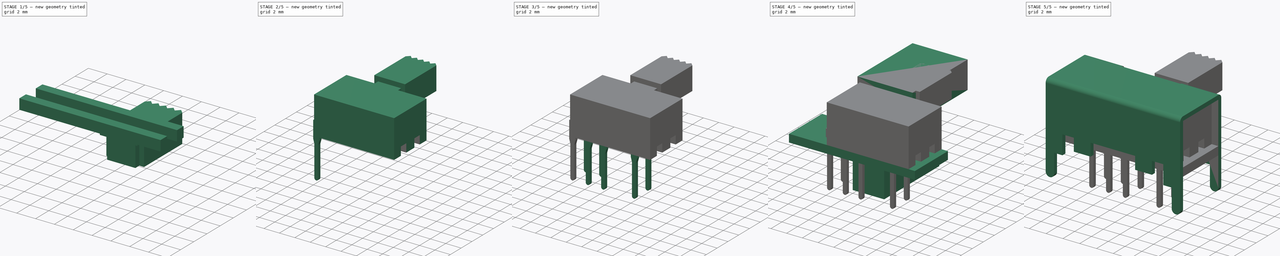
[diagram: build sequence overview — one tinted view per stage of 5, left to right]
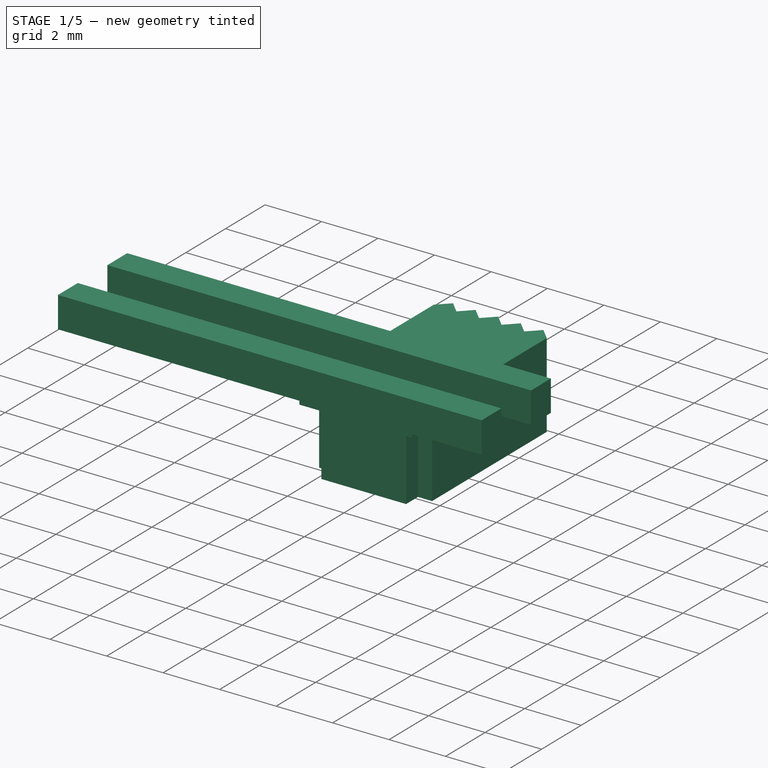
[diagram: stage 1 of 5 — iso view after this stage's code; geometry added in this stage tinted green]
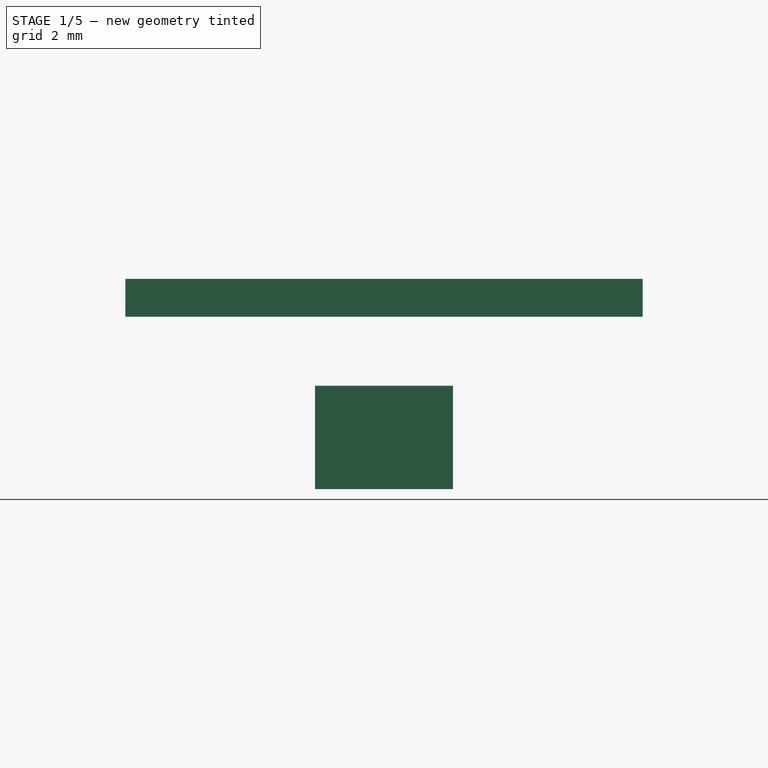
[diagram: stage 1 of 5 — front view after this stage's code; geometry added in this stage tinted green]
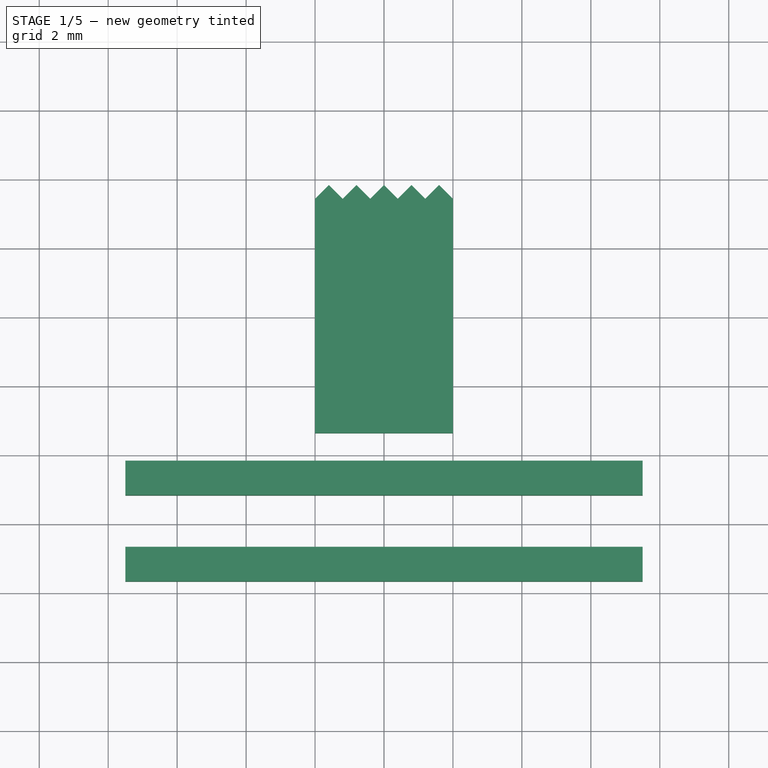
[diagram: stage 1 of 5 — top view after this stage's code; geometry added in this stage tinted green]
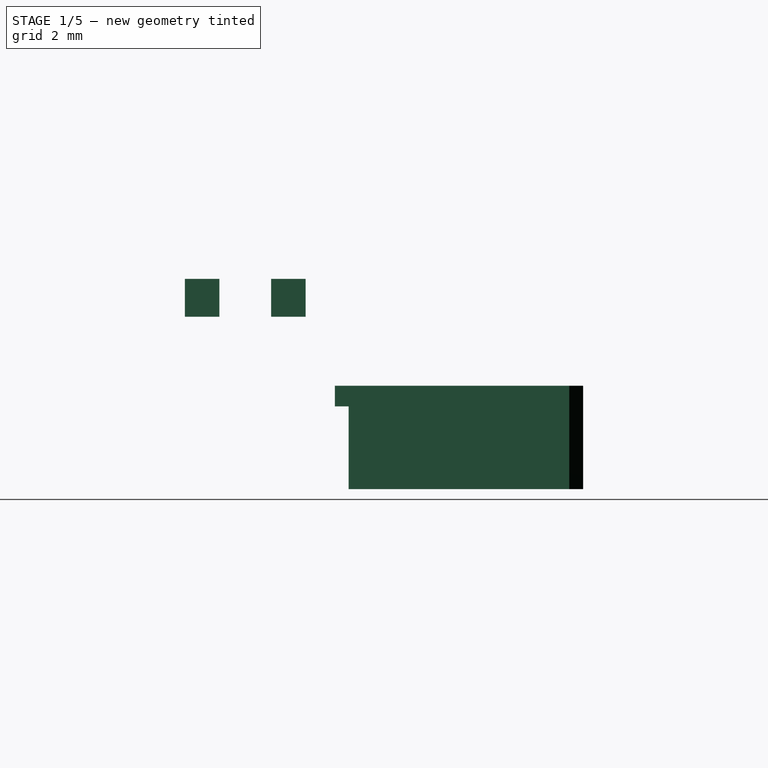
[diagram: stage 1 of 5 — right view after this stage's code; geometry added in this stage tinted green]
FCSTD DOCUMENT  (FreeCAD 0.19R24291 (Git))
Label: SK-23D05-G6-Inv
License: All rights reserved
LicenseURL: http://en.wikipedia.org/wiki/All_rights_reserved
objects: Sketcher::SketchObject×10, Part::Extrusion×10, Part::Box×8, Part::Cut×4, Part::MultiFuse×3, Part::Fillet×1
note: 36 computed .brp shape members not serialized (recipe doc carries the construction recipe); baked Part::Feature solids carry a one-line shape summary decoded from their .brp

FEATURE [Sketcher::SketchObject] Sketch001
  FullyConstrained = true
  sketch-geometry (17):
    g0: LineSegment StartX=-2 StartY=9.4 StartZ=0 EndX=-2 EndY=3.6 EndZ=0
    g1: LineSegment StartX=2 StartY=9.4 StartZ=0 EndX=2 EndY=3.6 EndZ=0
    g2: LineSegment StartX=-2 StartY=9.4 StartZ=0 EndX=-1.6 EndY=9.8 EndZ=0
    g3: LineSegment StartX=-1.6 StartY=9.8 StartZ=0 EndX=-1.2 EndY=9.4 EndZ=0
    g4: LineSegment StartX=-1.2 StartY=9.4 StartZ=0 EndX=-0.8 EndY=9.8 EndZ=0
    g5: LineSegment StartX=-0.8 StartY=9.8 StartZ=0 EndX=-0.4 EndY=9.4 EndZ=0
    g6: LineSegment StartX=-0.4 StartY=9.4 StartZ=0 EndX=-1e-16 EndY=9.8 EndZ=0
    g7: LineSegment StartX=-1e-16 StartY=9.8 StartZ=0 EndX=0.4 EndY=9.4 EndZ=0
    g8: LineSegment StartX=0.4 StartY=9.4 StartZ=0 EndX=0.8 EndY=9.8 EndZ=0
    g9: LineSegment StartX=0.8 StartY=9.8 StartZ=0 EndX=1.2 EndY=9.4 EndZ=0
    g10: LineSegment StartX=1.2 StartY=9.4 StartZ=0 EndX=1.6 EndY=9.8 EndZ=0
    g11: LineSegment StartX=1.6 StartY=9.8 StartZ=0 EndX=2 EndY=9.4 EndZ=0
    g12: LineSegment StartX=-2 StartY=3.6 StartZ=0 EndX=-1.5 EndY=3.6 EndZ=0
    g13: LineSegment StartX=1.5 StartY=3.6 StartZ=0 EndX=2 EndY=3.6 EndZ=0
    g14: LineSegment StartX=-1.5 StartY=3.6 StartZ=0 EndX=-1.5 EndY=3 EndZ=0
    g15: LineSegment StartX=1.5 StartY=3.6 StartZ=0 EndX=1.5 EndY=3 EndZ=0
    g16: LineSegment StartX=-1.5 StartY=3 StartZ=0 EndX=1.5 EndY=3 EndZ=0
  constraints (51):
    c: Vertical(g0)
    c: Vertical(g1)
    c: Horizontal(g1,g0)
    c: DistanceX(g0,g-1) = 2
    c: DistanceX(g-1,g1) = 2
    c: Coincident(g3,g2)
    c: Coincident(g5,g4)
    c: Coincident(g6,g7)
    c: Coincident(g9,g8)
    c: Coincident(g10,g11)
    c: Coincident(g11,g1)
    c: Coincident(g7,g8)
    c: Coincident(g9,g10)
    c: Coincident(g6,g5)
    c: Coincident(g4,g3)
    c: Coincident(g0,g2)
    c: Horizontal(g2,g4)
    c: Horizontal(g4,g6)
    c: Horizontal(g6,g8)
    c: Horizontal(g8,g10)
    c: Horizontal(g0,g3)
    c: Horizontal(g3,g5)
    c: Horizontal(g5,g7)
    c: Horizontal(g7,g9)
    c: DistanceY(g0,g2) = 0.4
    c: DistanceX(g6,g-1) = 0
    c: DistanceX(g0,g2) = 0.4
    c: DistanceX(g2,g3) = 0.4
    c: DistanceX(g3,g4) = 0.4
    c: DistanceX(g4,g5) = 0.4
    c: DistanceX(g10,g1) = 0.4
    c: DistanceX(g9,g10) = 0.4
    c: DistanceX(g8,g9) = 0.4
    c: DistanceX(g7,g8) = 0.4
    c: Horizontal(g13)
    c: Horizontal(g12)
    c: Distance(g12) = 0.5
    c: Distance(g13) = 0.5
    c: Coincident(g13,g1)
    c: Coincident(g12,g0)
    c: Vertical(g14)
    c: Vertical(g15)
    c: Horizontal(g16)
    c: Coincident(g16,g15)
    c: Coincident(g14,g16)
    c: Distance(g14) = 0.6
    c: Coincident(g14,g12)
    c: Coincident(g15,g13)
    c: DistanceY(g-1,g15) = 3
    c: Equal(g15,g14)
    c: DistanceY(g0,g2) = 6.2
FEATURE [Part::Extrusion] Extrude001
  Base = -> Sketch001
  Dir = (0,0,1)
  DirMode = 2
  FaceMakerClass = Part::FaceMakerBullseye
  LengthFwd = 3
  LengthRev = 0
  Solid = true
  Symmetric = false
FEATURE [Part::Box] Box005  label="Cube004"
  AttacherType = Attacher::AttachEngine3D
  Height = 0.6
  Length = 4
  Placement = pos=(-2,2.6,2.4) rot=(0,0,1;0rad)
  Width = 1
FEATURE [Part::Box] Box006  label="Cube005"
  AttacherType = Attacher::AttachEngine3D
  Height = 1.1
  Length = 15
  Placement = pos=(-7.5,-1.75,5) rot=(0,0,1;0rad)
  Width = 1
FEATURE [Part::Box] Box007  label="Cube006"
  AttacherType = Attacher::AttachEngine3D
  Height = 1.1
  Length = 15
  Placement = pos=(-7.5,0.75,5) rot=(0,0,1;0rad)
  Width = 1
FEATURE [Part::MultiFuse] Fusion002
  Shapes = -> [Box006,Box007]
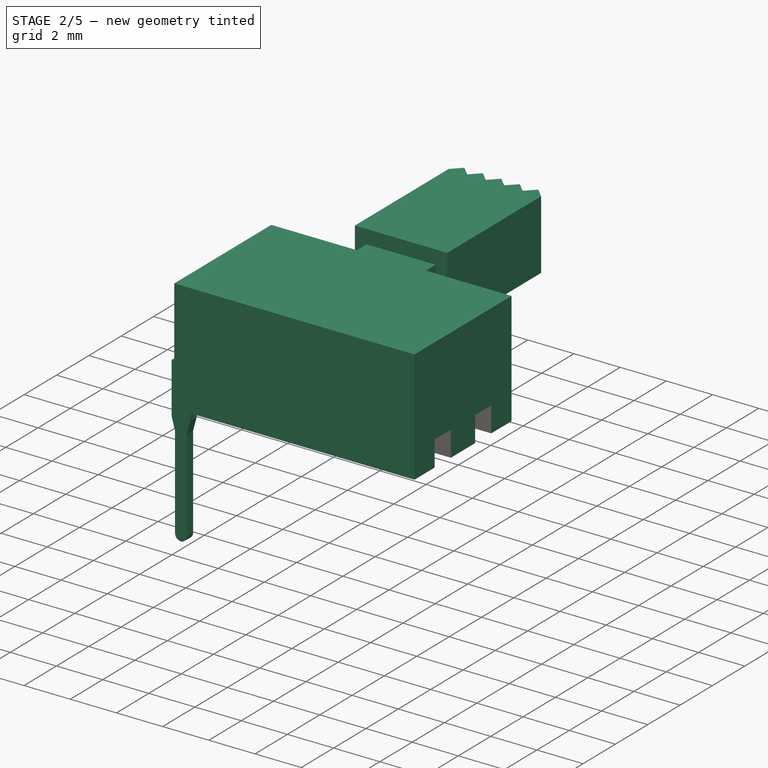
[diagram: stage 2 of 5 — iso view after this stage's code; geometry added in this stage tinted green]
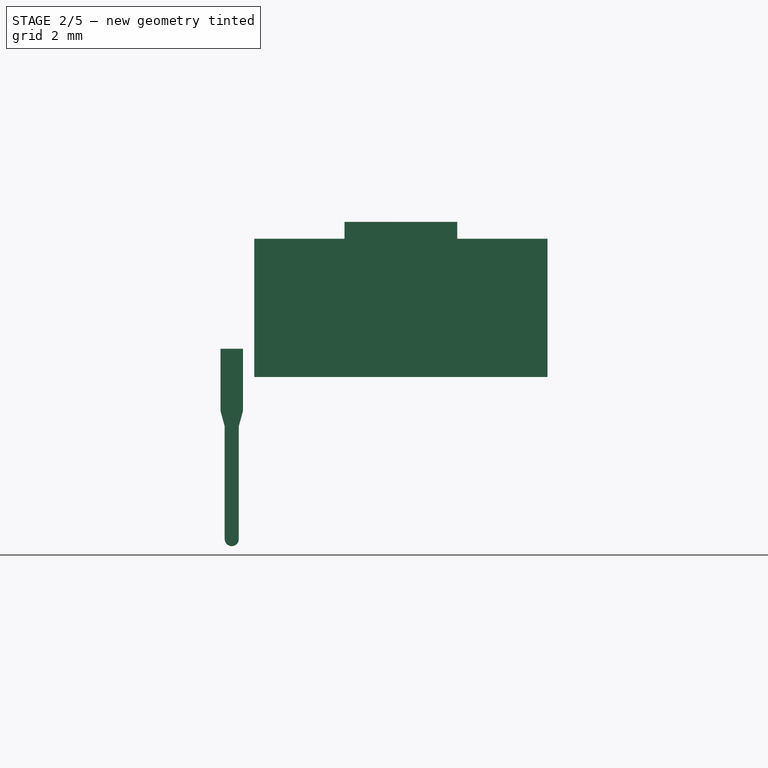
[diagram: stage 2 of 5 — front view after this stage's code; geometry added in this stage tinted green]
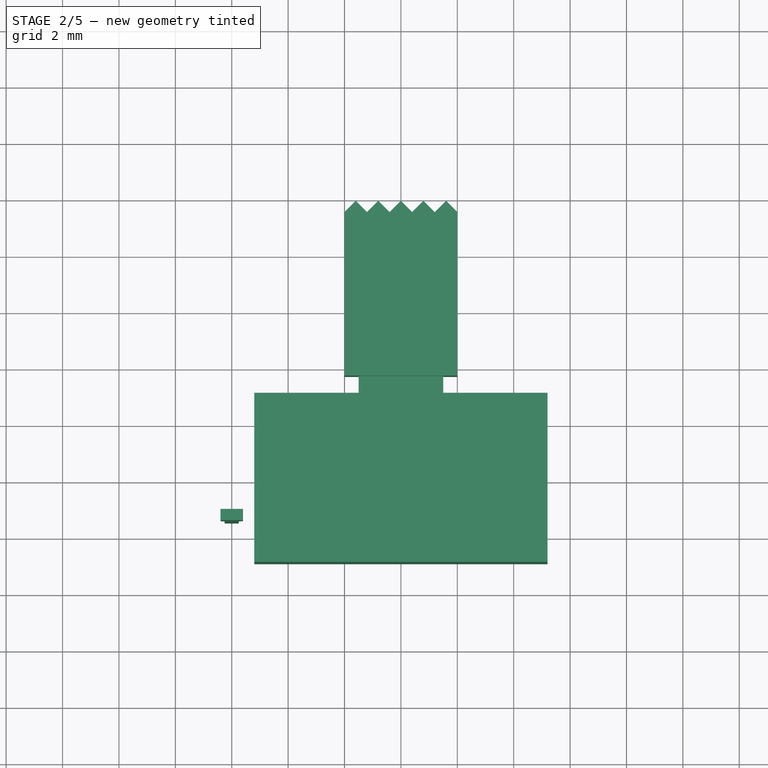
[diagram: stage 2 of 5 — top view after this stage's code; geometry added in this stage tinted green]
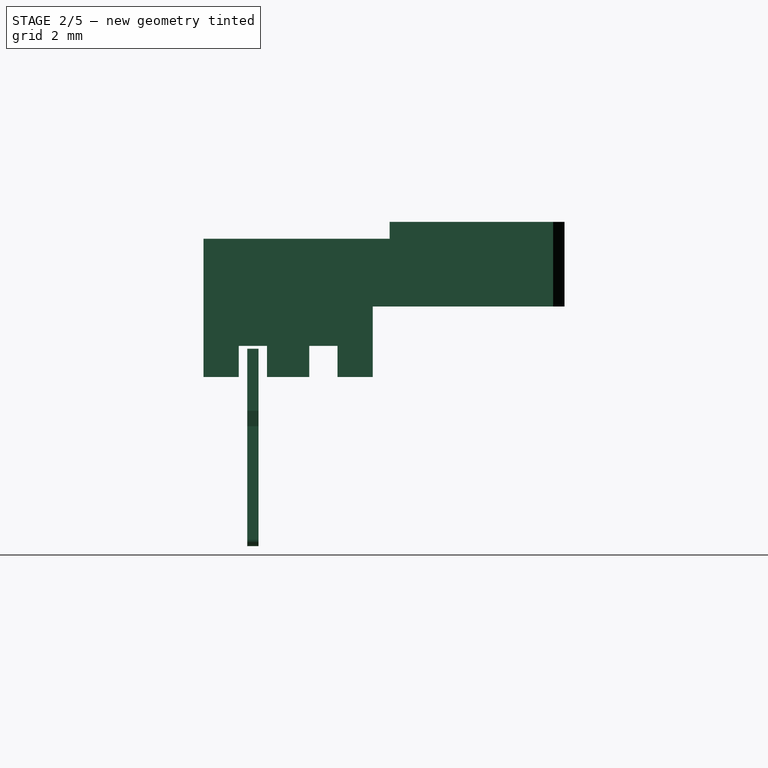
[diagram: stage 2 of 5 — right view after this stage's code; geometry added in this stage tinted green]
FEATURE [Part::Box] Box004  label="Cube003"
  AttacherType = Attacher::AttachEngine3D
  Height = 4.9
  Length = 10.4
  Placement = pos=(-5.2,-3,5) rot=(0,0,1;0rad)
  Width = 6
  expr: .Placement.Base.y = -(Width / 2)
  expr: .Placement.Base.x = -(Length / 2)
FEATURE [Part::Cut] Cut002
  Base = -> Extrude001
  Placement = pos=(0,0,7.5) rot=(0,0,1;0rad)
  Tool = -> Box005
FEATURE [Part::MultiFuse] Fusion001  label="PlasticLever"
  Placement = pos=(2,0,0) rot=(0,0,1;0rad)
  Shapes = -> [Box004,Cut002]
FEATURE [Sketcher::SketchObject] Sketch009
  FullyConstrained = true
  Placement = pos=(0,0,0) rot=(1,0,0;1.5708rad)
  sketch-geometry (8):
    g0: ArcOfCircle CenterX=0 CenterY=0.25 CenterZ=0 NormalX=0 NormalY=0 NormalZ=1 AngleXU=0 Radius=0.25 StartAngle=3.14159 EndAngle=6.28319
    g1: LineSegment StartX=-0.25 StartY=0.25 StartZ=0 EndX=-0.25 EndY=4.25 EndZ=0
    g2: LineSegment StartX=0.25 StartY=0.25 StartZ=0 EndX=0.25 EndY=4.25 EndZ=0
    g3: LineSegment StartX=0.4 StartY=4.8 StartZ=0 EndX=0.4 EndY=7 EndZ=0
    g4: LineSegment StartX=-0.4 StartY=4.8 StartZ=0 EndX=-0.4 EndY=7 EndZ=0
    g5: LineSegment StartX=0.4 StartY=4.8 StartZ=0 EndX=0.25 EndY=4.25 EndZ=0
    g6: LineSegment StartX=-0.4 StartY=4.8 StartZ=0 EndX=-0.25 EndY=4.25 EndZ=0
    g7: LineSegment StartX=-0.4 StartY=7 StartZ=0 EndX=0.4 EndY=7 EndZ=0
  constraints (25):
    c: Horizontal(g0,g0)
    c: Horizontal(g0,g0)
    c: Radius(g0) = 0.25
    c: DistanceY(g-1,g0) = 0.25
    c: DistanceX(g-1,g0) = 0
    c: Vertical(g1)
    c: Vertical(g2)
    c: Distance(g2) = 4
    c: Equal(g1,g2)
    c: Coincident(g1,g0)
    c: Coincident(g2,g0)
    c: Vertical(g3)
    c: Vertical(g4)
    c: Horizontal(g3,g4)
    c: DistanceY(g-1,g3) = 7
    c: DistanceX(g4,g3) = 0.8
    c: DistanceX(g4,g-1) = 0.4
    c: DistanceY(g-1,g4) = 4.8
    c: Equal(g4,g3)
    c: Coincident(g6,g1)
    c: Coincident(g6,g4)
    c: Coincident(g5,g3)
    c: Coincident(g5,g2)
    c: Coincident(g7,g3)
    c: Coincident(g7,g4)
FEATURE [Part::Extrusion] Extrude009  label="SteelPin008"
  Base = -> Sketch009
  Dir = (0,-1,2e-16)
  DirMode = 2
  FaceMakerClass = Part::FaceMakerBullseye
  LengthFwd = 0.4
  LengthRev = 0
  Placement = pos=(-4,-1.05,-1) rot=(0,0,1;0rad)
  Solid = true
  Symmetric = false
FEATURE [Part::Cut] Cut003  label="PlasticLever001"
  Base = -> Fusion001
  Tool = -> Fusion002
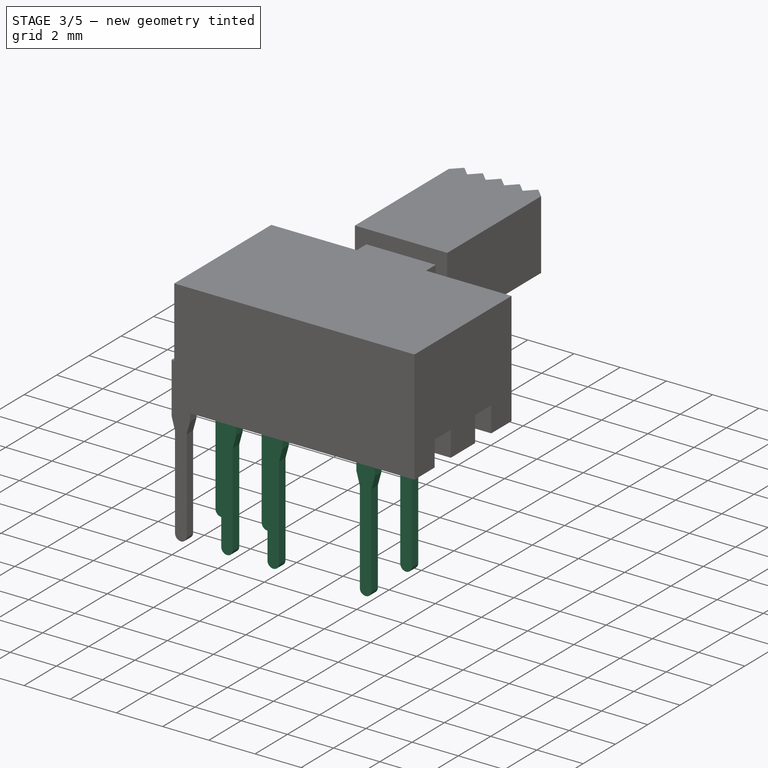
[diagram: stage 3 of 5 — iso view after this stage's code; geometry added in this stage tinted green]
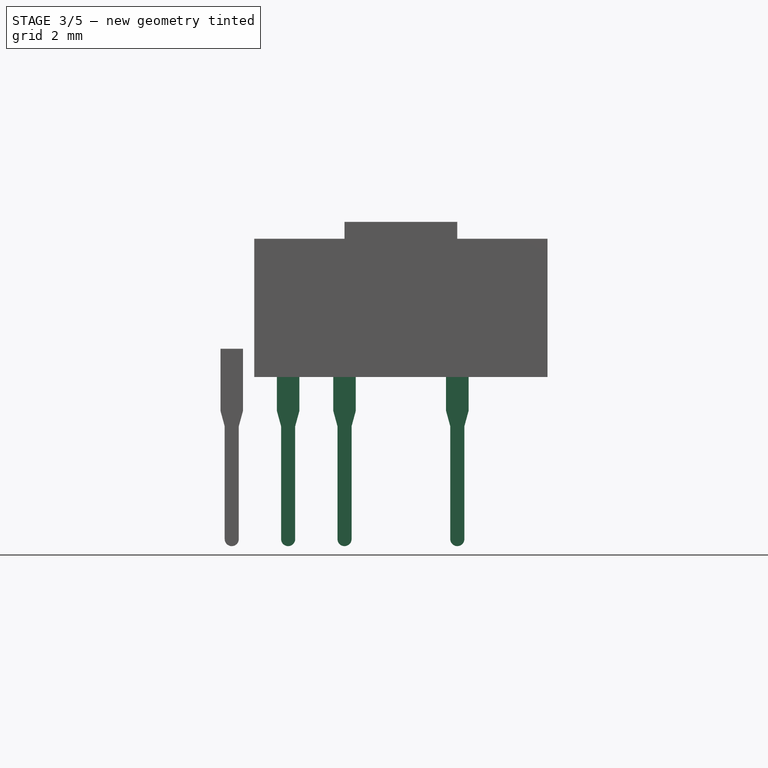
[diagram: stage 3 of 5 — front view after this stage's code; geometry added in this stage tinted green]
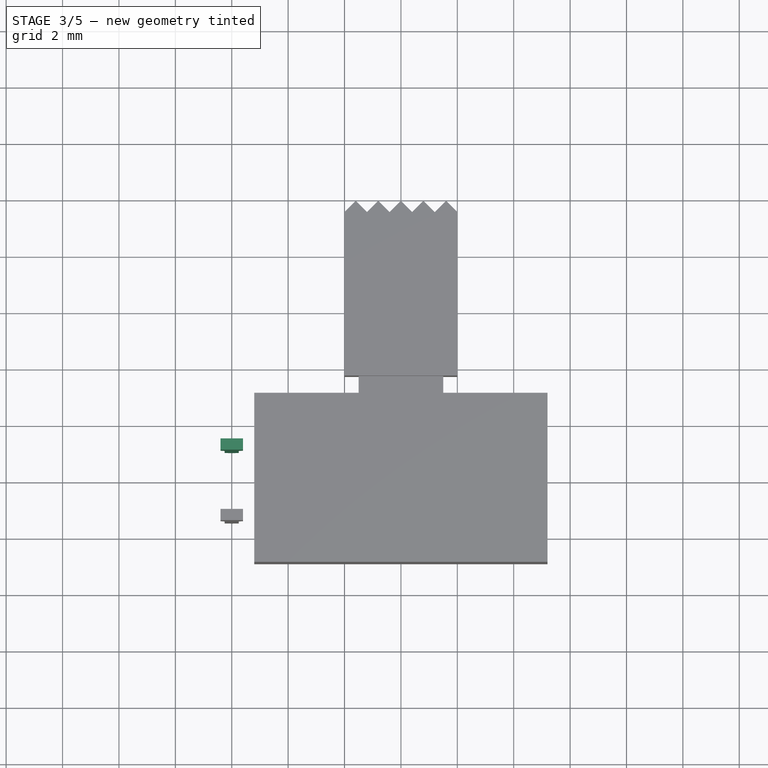
[diagram: stage 3 of 5 — top view after this stage's code; geometry added in this stage tinted green]
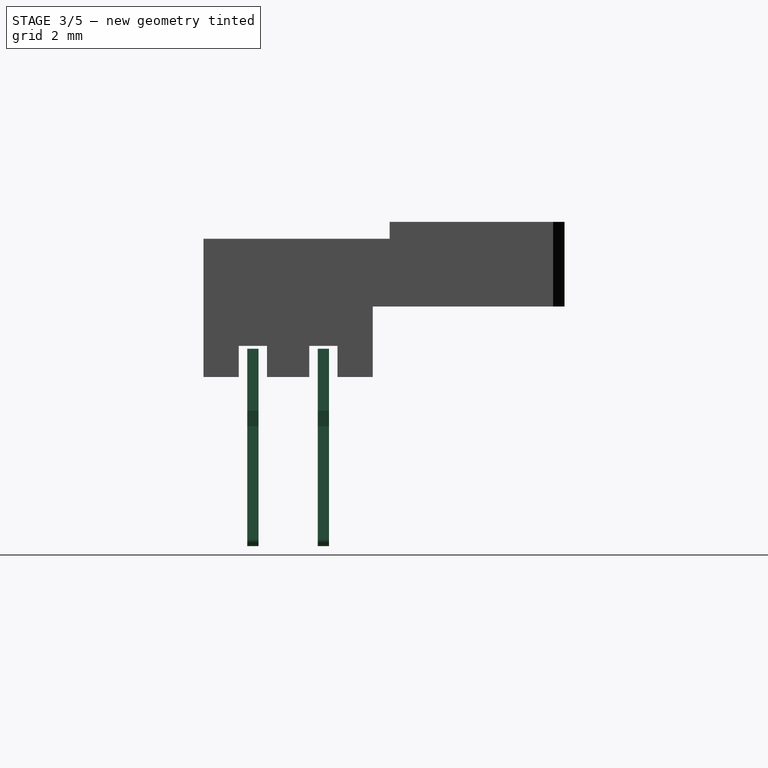
[diagram: stage 3 of 5 — right view after this stage's code; geometry added in this stage tinted green]
FEATURE [Sketcher::SketchObject] Sketch003
  FullyConstrained = true
  Placement = pos=(0,0,0) rot=(1,0,0;1.5708rad)
  sketch-geometry (8):
    g0: ArcOfCircle CenterX=0 CenterY=0.25 CenterZ=0 NormalX=0 NormalY=0 NormalZ=1 AngleXU=0 Radius=0.25 StartAngle=3.14159 EndAngle=6.28319
    g1: LineSegment StartX=-0.25 StartY=0.25 StartZ=0 EndX=-0.25 EndY=4.25 EndZ=0
    g2: LineSegment StartX=0.25 StartY=0.25 StartZ=0 EndX=0.25 EndY=4.25 EndZ=0
    g3: LineSegment StartX=0.4 StartY=4.8 StartZ=0 EndX=0.4 EndY=7 EndZ=0
    g4: LineSegment StartX=-0.4 StartY=4.8 StartZ=0 EndX=-0.4 EndY=7 EndZ=0
    g5: LineSegment StartX=0.4 StartY=4.8 StartZ=0 EndX=0.25 EndY=4.25 EndZ=0
    g6: LineSegment StartX=-0.4 StartY=4.8 StartZ=0 EndX=-0.25 EndY=4.25 EndZ=0
    g7: LineSegment StartX=-0.4 StartY=7 StartZ=0 EndX=0.4 EndY=7 EndZ=0
  constraints (25):
    c: Horizontal(g0,g0)
    c: Horizontal(g0,g0)
    c: Radius(g0) = 0.25
    c: DistanceY(g-1,g0) = 0.25
    c: DistanceX(g-1,g0) = 0
    c: Vertical(g1)
    c: Vertical(g2)
    c: Distance(g2) = 4
    c: Equal(g1,g2)
    c: Coincident(g1,g0)
    c: Coincident(g2,g0)
    c: Vertical(g3)
    c: Vertical(g4)
    c: Horizontal(g3,g4)
    c: DistanceY(g-1,g3) = 7
    c: DistanceX(g4,g3) = 0.8
    c: DistanceX(g4,g-1) = 0.4
    c: DistanceY(g-1,g4) = 4.8
    c: Equal(g4,g3)
    c: Coincident(g6,g1)
    c: Coincident(g6,g4)
    c: Coincident(g5,g3)
    c: Coincident(g5,g2)
    c: Coincident(g7,g3)
    c: Coincident(g7,g4)
FEATURE [Part::Extrusion] Extrude003  label="SteelPin002"
  Base = -> Sketch003
  Dir = (0,-1,2e-16)
  DirMode = 2
  FaceMakerClass = Part::FaceMakerBullseye
  LengthFwd = 0.4
  LengthRev = 0
  Placement = pos=(0,-1.05,-1) rot=(0,0,1;0rad)
  Solid = true
  Symmetric = false
FEATURE [Sketcher::SketchObject] Sketch004
  FullyConstrained = true
  Placement = pos=(0,0,0) rot=(1,0,0;1.5708rad)
  sketch-geometry (8):
    g0: ArcOfCircle CenterX=0 CenterY=0.25 CenterZ=0 NormalX=0 NormalY=0 NormalZ=1 AngleXU=0 Radius=0.25 StartAngle=3.14159 EndAngle=6.28319
    g1: LineSegment StartX=-0.25 StartY=0.25 StartZ=0 EndX=-0.25 EndY=4.25 EndZ=0
    g2: LineSegment StartX=0.25 StartY=0.25 StartZ=0 EndX=0.25 EndY=4.25 EndZ=0
    g3: LineSegment StartX=0.4 StartY=4.8 StartZ=0 EndX=0.4 EndY=7 EndZ=0
    g4: LineSegment StartX=-0.4 StartY=4.8 StartZ=0 EndX=-0.4 EndY=7 EndZ=0
    g5: LineSegment StartX=0.4 StartY=4.8 StartZ=0 EndX=0.25 EndY=4.25 EndZ=0
    g6: LineSegment StartX=-0.4 StartY=4.8 StartZ=0 EndX=-0.25 EndY=4.25 EndZ=0
    g7: LineSegment StartX=-0.4 StartY=7 StartZ=0 EndX=0.4 EndY=7 EndZ=0
  constraints (25):
    c: Horizontal(g0,g0)
    c: Horizontal(g0,g0)
    c: Radius(g0) = 0.25
    c: DistanceY(g-1,g0) = 0.25
    c: DistanceX(g-1,g0) = 0
    c: Vertical(g1)
    c: Vertical(g2)
    c: Distance(g2) = 4
    c: Equal(g1,g2)
    c: Coincident(g1,g0)
    c: Coincident(g2,g0)
    c: Vertical(g3)
    c: Vertical(g4)
    c: Horizontal(g3,g4)
    c: DistanceY(g-1,g3) = 7
    c: DistanceX(g4,g3) = 0.8
    c: DistanceX(g4,g-1) = 0.4
    c: DistanceY(g-1,g4) = 4.8
    c: Equal(g4,g3)
    c: Coincident(g6,g1)
    c: Coincident(g6,g4)
    c: Coincident(g5,g3)
    c: Coincident(g5,g2)
    c: Coincident(g7,g3)
    c: Coincident(g7,g4)
FEATURE [Part::Extrusion] Extrude004  label="SteelPin003"
  Base = -> Sketch004
  Dir = (0,-1,6e-16)
  DirMode = 2
  FaceMakerClass = Part::FaceMakerBullseye
  LengthFwd = 0.4
  LengthRev = 0
  Placement = pos=(-2,1.45,-1) rot=(0,0,1;0rad)
  Solid = true
  Symmetric = false
FEATURE [Sketcher::SketchObject] Sketch005
  FullyConstrained = true
  Placement = pos=(0,0,0) rot=(1,0,0;1.5708rad)
  sketch-geometry (8):
    g0: ArcOfCircle CenterX=0 CenterY=0.25 CenterZ=0 NormalX=0 NormalY=0 NormalZ=1 AngleXU=0 Radius=0.25 StartAngle=3.14159 EndAngle=6.28319
    g1: LineSegment StartX=-0.25 StartY=0.25 StartZ=0 EndX=-0.25 EndY=4.25 EndZ=0
    g2: LineSegment StartX=0.25 StartY=0.25 StartZ=0 EndX=0.25 EndY=4.25 EndZ=0
    g3: LineSegment StartX=0.4 StartY=4.8 StartZ=0 EndX=0.4 EndY=7 EndZ=0
    g4: LineSegment StartX=-0.4 StartY=4.8 StartZ=0 EndX=-0.4 EndY=7 EndZ=0
    g5: LineSegment StartX=0.4 StartY=4.8 StartZ=0 EndX=0.25 EndY=4.25 EndZ=0
    g6: LineSegment StartX=-0.4 StartY=4.8 StartZ=0 EndX=-0.25 EndY=4.25 EndZ=0
    g7: LineSegment StartX=-0.4 StartY=7 StartZ=0 EndX=0.4 EndY=7 EndZ=0
  constraints (25):
    c: Horizontal(g0,g0)
    c: Horizontal(g0,g0)
    c: Radius(g0) = 0.25
    c: DistanceY(g-1,g0) = 0.25
    c: DistanceX(g-1,g0) = 0
    c: Vertical(g1)
    c: Vertical(g2)
    c: Distance(g2) = 4
    c: Equal(g1,g2)
    c: Coincident(g1,g0)
    c: Coincident(g2,g0)
    c: Vertical(g3)
    c: Vertical(g4)
    c: Horizontal(g3,g4)
    c: DistanceY(g-1,g3) = 7
    c: DistanceX(g4,g3) = 0.8
    c: DistanceX(g4,g-1) = 0.4
    c: DistanceY(g-1,g4) = 4.8
    c: Equal(g4,g3)
    c: Coincident(g6,g1)
    c: Coincident(g6,g4)
    c: Coincident(g5,g3)
    c: Coincident(g5,g2)
    c: Coincident(g7,g3)
    c: Coincident(g7,g4)
FEATURE [Part::Extrusion] Extrude005  label="SteelPin004"
  Base = -> Sketch005
  Dir = (0,-1,2e-16)
  DirMode = 2
  FaceMakerClass = Part::FaceMakerBullseye
  LengthFwd = 0.4
  LengthRev = 0
  Placement = pos=(-2,-1.05,-1) rot=(0,0,1;0rad)
  Solid = true
  Symmetric = false
FEATURE [Sketcher::SketchObject] Sketch006
  FullyConstrained = true
  Placement = pos=(0,0,0) rot=(1,0,0;1.5708rad)
  sketch-geometry (8):
    g0: ArcOfCircle CenterX=0 CenterY=0.25 CenterZ=0 NormalX=0 NormalY=0 NormalZ=1 AngleXU=0 Radius=0.25 StartAngle=3.14159 EndAngle=6.28319
    g1: LineSegment StartX=-0.25 StartY=0.25 StartZ=0 EndX=-0.25 EndY=4.25 EndZ=0
    g2: LineSegment StartX=0.25 StartY=0.25 StartZ=0 EndX=0.25 EndY=4.25 EndZ=0
    g3: LineSegment StartX=0.4 StartY=4.8 StartZ=0 EndX=0.4 EndY=7 EndZ=0
    g4: LineSegment StartX=-0.4 StartY=4.8 StartZ=0 EndX=-0.4 EndY=7 EndZ=0
    g5: LineSegment StartX=0.4 StartY=4.8 StartZ=0 EndX=0.25 EndY=4.25 EndZ=0
    g6: LineSegment StartX=-0.4 StartY=4.8 StartZ=0 EndX=-0.25 EndY=4.25 EndZ=0
    g7: LineSegment StartX=-0.4 StartY=7 StartZ=0 EndX=0.4 EndY=7 EndZ=0
  constraints (25):
    c: Horizontal(g0,g0)
    c: Horizontal(g0,g0)
    c: Radius(g0) = 0.25
    c: DistanceY(g-1,g0) = 0.25
    c: DistanceX(g-1,g0) = 0
    c: Vertical(g1)
    c: Vertical(g2)
    c: Distance(g2) = 4
    c: Equal(g1,g2)
    c: Coincident(g1,g0)
    c: Coincident(g2,g0)
    c: Vertical(g3)
    c: Vertical(g4)
    c: Horizontal(g3,g4)
    c: DistanceY(g-1,g3) = 7
    c: DistanceX(g4,g3) = 0.8
    c: DistanceX(g4,g-1) = 0.4
    c: DistanceY(g-1,g4) = 4.8
    c: Equal(g4,g3)
    c: Coincident(g6,g1)
    c: Coincident(g6,g4)
    c: Coincident(g5,g3)
    c: Coincident(g5,g2)
    c: Coincident(g7,g3)
    c: Coincident(g7,g4)
FEATURE [Part::Extrusion] Extrude006  label="SteelPin005"
  Base = -> Sketch006
  Dir = (0,-1,6e-16)
  DirMode = 2
  FaceMakerClass = Part::FaceMakerBullseye
  LengthFwd = 0.4
  LengthRev = 0
  Placement = pos=(4,1.45,-1) rot=(0,0,1;0rad)
  Solid = true
  Symmetric = false
FEATURE [Sketcher::SketchObject] Sketch007
  FullyConstrained = true
  Placement = pos=(0,0,0) rot=(1,0,0;1.5708rad)
  sketch-geometry (8):
    g0: ArcOfCircle CenterX=0 CenterY=0.25 CenterZ=0 NormalX=0 NormalY=0 NormalZ=1 AngleXU=0 Radius=0.25 StartAngle=3.14159 EndAngle=6.28319
    g1: LineSegment StartX=-0.25 StartY=0.25 StartZ=0 EndX=-0.25 EndY=4.25 EndZ=0
    g2: LineSegment StartX=0.25 StartY=0.25 StartZ=0 EndX=0.25 EndY=4.25 EndZ=0
    g3: LineSegment StartX=0.4 StartY=4.8 StartZ=0 EndX=0.4 EndY=7 EndZ=0
    g4: LineSegment StartX=-0.4 StartY=4.8 StartZ=0 EndX=-0.4 EndY=7 EndZ=0
    g5: LineSegment StartX=0.4 StartY=4.8 StartZ=0 EndX=0.25 EndY=4.25 EndZ=0
    g6: LineSegment StartX=-0.4 StartY=4.8 StartZ=0 EndX=-0.25 EndY=4.25 EndZ=0
    g7: LineSegment StartX=-0.4 StartY=7 StartZ=0 EndX=0.4 EndY=7 EndZ=0
  constraints (25):
    c: Horizontal(g0,g0)
    c: Horizontal(g0,g0)
    c: Radius(g0) = 0.25
    c: DistanceY(g-1,g0) = 0.25
    c: DistanceX(g-1,g0) = 0
    c: Vertical(g1)
    c: Vertical(g2)
    c: Distance(g2) = 4
    c: Equal(g1,g2)
    c: Coincident(g1,g0)
    c: Coincident(g2,g0)
    c: Vertical(g3)
    c: Vertical(g4)
    c: Horizontal(g3,g4)
    c: DistanceY(g-1,g3) = 7
    c: DistanceX(g4,g3) = 0.8
    c: DistanceX(g4,g-1) = 0.4
    c: DistanceY(g-1,g4) = 4.8
    c: Equal(g4,g3)
    c: Coincident(g6,g1)
    c: Coincident(g6,g4)
    c: Coincident(g5,g3)
    c: Coincident(g5,g2)
    c: Coincident(g7,g3)
    c: Coincident(g7,g4)
FEATURE [Part::Extrusion] Extrude007  label="SteelPin006"
  Base = -> Sketch007
  Dir = (0,-1,2e-16)
  DirMode = 2
  FaceMakerClass = Part::FaceMakerBullseye
  LengthFwd = 0.4
  LengthRev = 0
  Placement = pos=(4,-1.05,-1) rot=(0,0,1;0rad)
  Solid = true
  Symmetric = false
FEATURE [Sketcher::SketchObject] Sketch008
  FullyConstrained = true
  Placement = pos=(0,0,0) rot=(1,0,0;1.5708rad)
  sketch-geometry (8):
    g0: ArcOfCircle CenterX=0 CenterY=0.25 CenterZ=0 NormalX=0 NormalY=0 NormalZ=1 AngleXU=0 Radius=0.25 StartAngle=3.14159 EndAngle=6.28319
    g1: LineSegment StartX=-0.25 StartY=0.25 StartZ=0 EndX=-0.25 EndY=4.25 EndZ=0
    g2: LineSegment StartX=0.25 StartY=0.25 StartZ=0 EndX=0.25 EndY=4.25 EndZ=0
    g3: LineSegment StartX=0.4 StartY=4.8 StartZ=0 EndX=0.4 EndY=7 EndZ=0
    g4: LineSegment StartX=-0.4 StartY=4.8 StartZ=0 EndX=-0.4 EndY=7 EndZ=0
    g5: LineSegment StartX=0.4 StartY=4.8 StartZ=0 EndX=0.25 EndY=4.25 EndZ=0
    g6: LineSegment StartX=-0.4 StartY=4.8 StartZ=0 EndX=-0.25 EndY=4.25 EndZ=0
    g7: LineSegment StartX=-0.4 StartY=7 StartZ=0 EndX=0.4 EndY=7 EndZ=0
  constraints (25):
    c: Horizontal(g0,g0)
    c: Horizontal(g0,g0)
    c: Radius(g0) = 0.25
    c: DistanceY(g-1,g0) = 0.25
    c: DistanceX(g-1,g0) = 0
    c: Vertical(g1)
    c: Vertical(g2)
    c: Distance(g2) = 4
    c: Equal(g1,g2)
    c: Coincident(g1,g0)
    c: Coincident(g2,g0)
    c: Vertical(g3)
    c: Vertical(g4)
    c: Horizontal(g3,g4)
    c: DistanceY(g-1,g3) = 7
    c: DistanceX(g4,g3) = 0.8
    c: DistanceX(g4,g-1) = 0.4
    c: DistanceY(g-1,g4) = 4.8
    c: Equal(g4,g3)
    c: Coincident(g6,g1)
    c: Coincident(g6,g4)
    c: Coincident(g5,g3)
    c: Coincident(g5,g2)
    c: Coincident(g7,g3)
    c: Coincident(g7,g4)
FEATURE [Part::Extrusion] Extrude008  label="SteelPin007"
  Base = -> Sketch008
  Dir = (0,-1,6e-16)
  DirMode = 2
  FaceMakerClass = Part::FaceMakerBullseye
  LengthFwd = 0.4
  LengthRev = 0
  Placement = pos=(-4,1.45,-1) rot=(0,0,1;0rad)
  Solid = true
  Symmetric = false
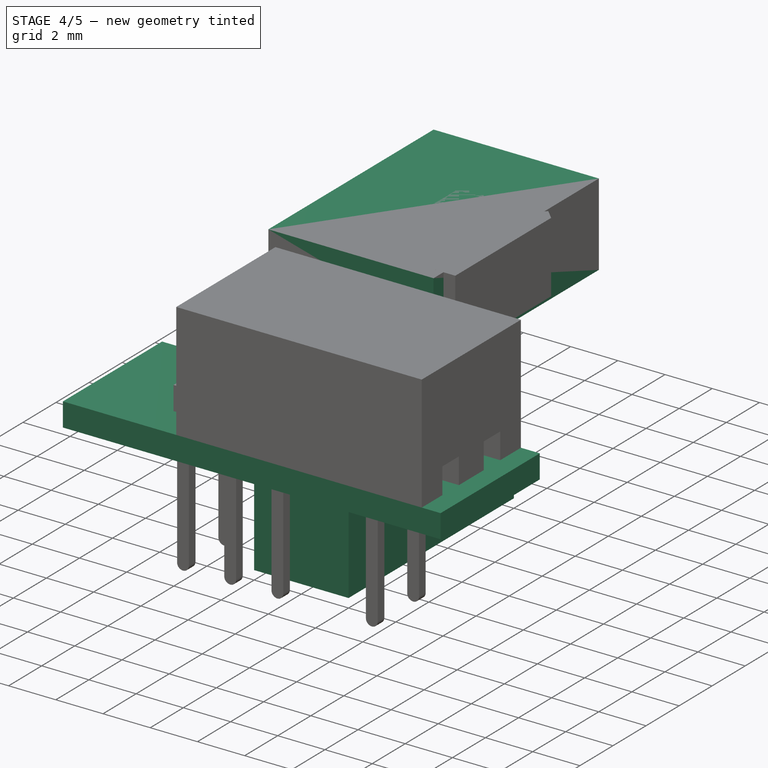
[diagram: stage 4 of 5 — iso view after this stage's code; geometry added in this stage tinted green]
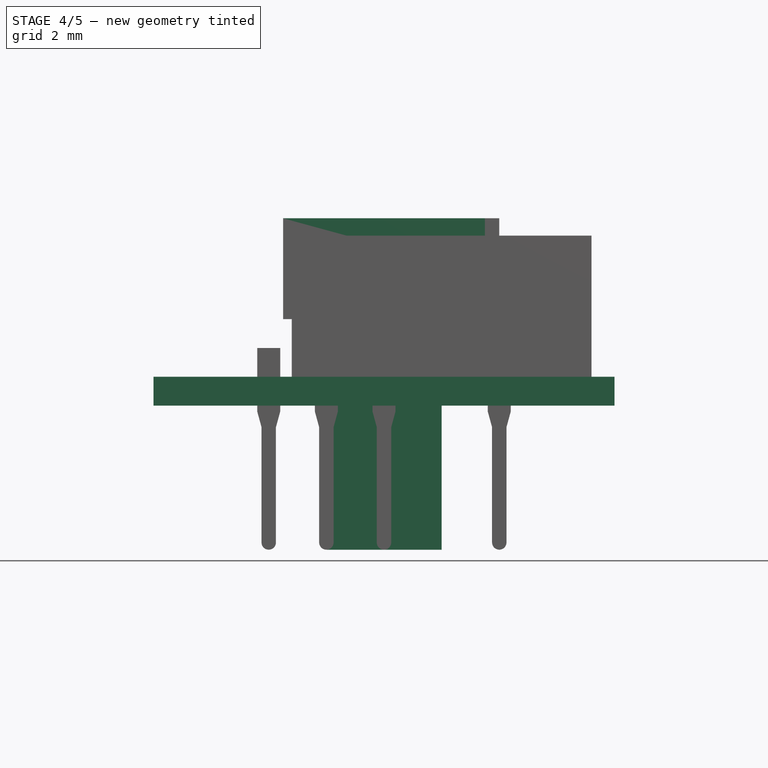
[diagram: stage 4 of 5 — front view after this stage's code; geometry added in this stage tinted green]
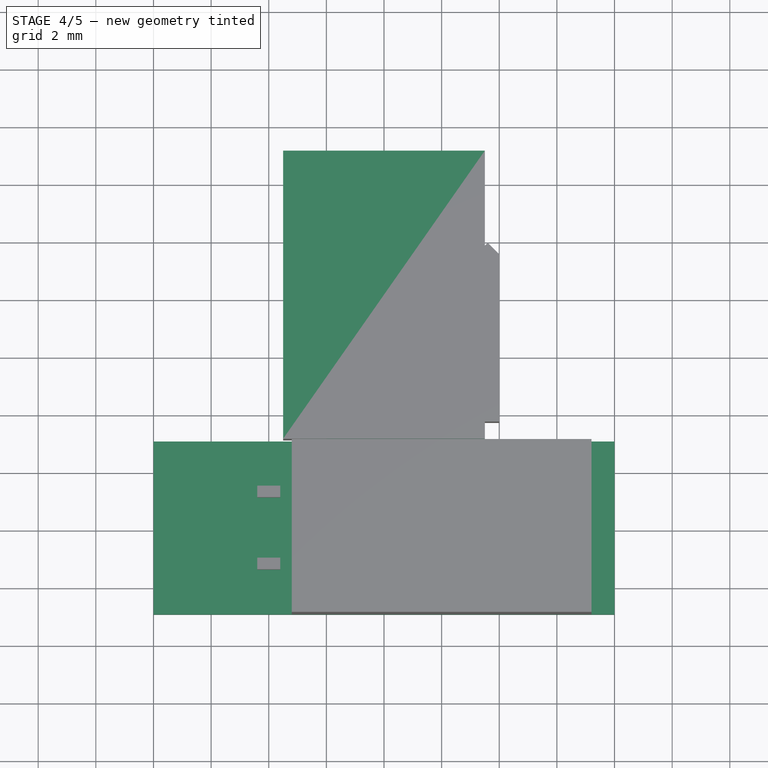
[diagram: stage 4 of 5 — top view after this stage's code; geometry added in this stage tinted green]
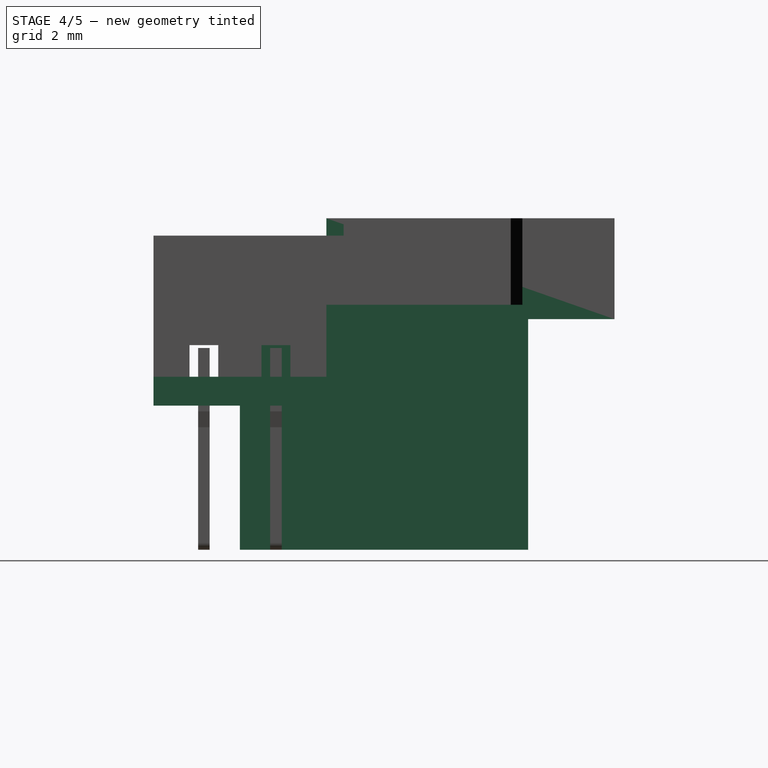
[diagram: stage 4 of 5 — right view after this stage's code; geometry added in this stage tinted green]
FEATURE [Part::Box] Box001  label="Cube001"
  AttacherType = Attacher::AttachEngine3D
  Height = 3.5
  Length = 7
  Placement = pos=(-3.5,3,7) rot=(0,0,1;0rad)
  Width = 10
FEATURE [Part::Box] Box002  label="Cube002"
  AttacherType = Attacher::AttachEngine3D
  Height = 10
  Length = 4
  Placement = pos=(-2,0,-1) rot=(0,0,1;0rad)
  Width = 10
FEATURE [Part::MultiFuse] Fusion
  Shapes = -> [Box001,Box002]
FEATURE [Part::Box] Box003  label="FiberglassBase"
  AttacherType = Attacher::AttachEngine3D
  Height = 1
  Length = 16
  Placement = pos=(-8,-3,4) rot=(0,0,1;0rad)
  Width = 6
  expr: .Placement.Base.x = -(Length / 2)
  expr: .Placement.Base.y = -(Width / 2)
FEATURE [Sketcher::SketchObject] Sketch002
  FullyConstrained = true
  Placement = pos=(0,0,0) rot=(1,0,0;1.5708rad)
  sketch-geometry (8):
    g0: ArcOfCircle CenterX=0 CenterY=0.25 CenterZ=0 NormalX=0 NormalY=0 NormalZ=1 AngleXU=0 Radius=0.25 StartAngle=3.14159 EndAngle=6.28319
    g1: LineSegment StartX=-0.25 StartY=0.25 StartZ=0 EndX=-0.25 EndY=4.25 EndZ=0
    g2: LineSegment StartX=0.25 StartY=0.25 StartZ=0 EndX=0.25 EndY=4.25 EndZ=0
    g3: LineSegment StartX=0.4 StartY=4.8 StartZ=0 EndX=0.4 EndY=7 EndZ=0
    g4: LineSegment StartX=-0.4 StartY=4.8 StartZ=0 EndX=-0.4 EndY=7 EndZ=0
    g5: LineSegment StartX=0.4 StartY=4.8 StartZ=0 EndX=0.25 EndY=4.25 EndZ=0
    g6: LineSegment StartX=-0.4 StartY=4.8 StartZ=0 EndX=-0.25 EndY=4.25 EndZ=0
    g7: LineSegment StartX=-0.4 StartY=7 StartZ=0 EndX=0.4 EndY=7 EndZ=0
  constraints (25):
    c: Horizontal(g0,g0)
    c: Horizontal(g0,g0)
    c: Radius(g0) = 0.25
    c: DistanceY(g-1,g0) = 0.25
    c: DistanceX(g-1,g0) = 0
    c: Vertical(g1)
    c: Vertical(g2)
    c: Distance(g2) = 4
    c: Equal(g1,g2)
    c: Coincident(g1,g0)
    c: Coincident(g2,g0)
    c: Vertical(g3)
    c: Vertical(g4)
    c: Horizontal(g3,g4)
    c: DistanceY(g-1,g3) = 7
    c: DistanceX(g4,g3) = 0.8
    c: DistanceX(g4,g-1) = 0.4
    c: DistanceY(g-1,g4) = 4.8
    c: Equal(g4,g3)
    c: Coincident(g6,g1)
    c: Coincident(g6,g4)
    c: Coincident(g5,g3)
    c: Coincident(g5,g2)
    c: Coincident(g7,g3)
    c: Coincident(g7,g4)
FEATURE [Part::Extrusion] Extrude002  label="SteelPin001"
  Base = -> Sketch002
  Dir = (0,-1,6e-16)
  DirMode = 2
  FaceMakerClass = Part::FaceMakerBullseye
  LengthFwd = 0.4
  LengthRev = 0
  Placement = pos=(0,1.45,-1) rot=(0,0,1;0rad)
  Solid = true
  Symmetric = false
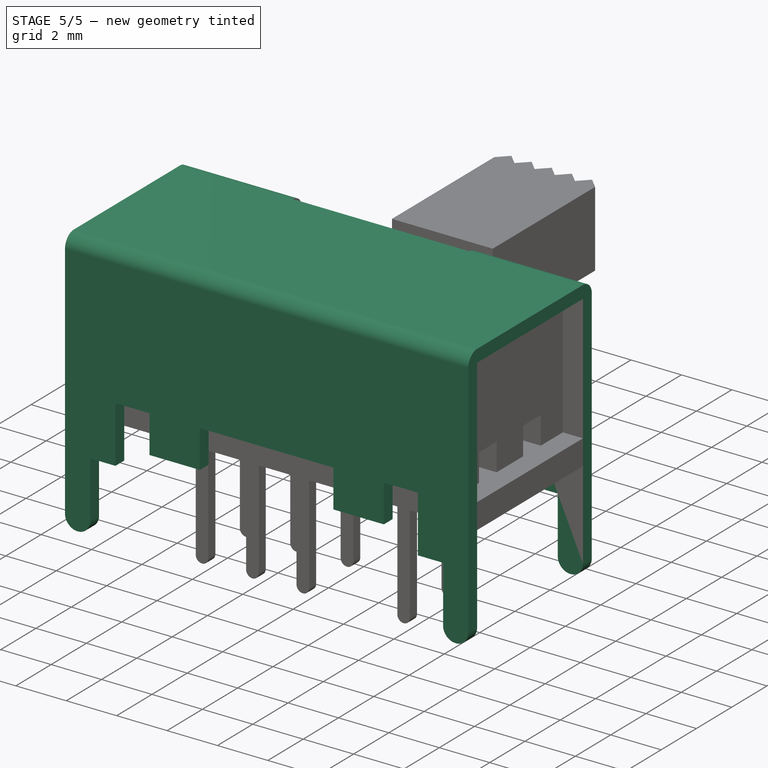
[diagram: stage 5 of 5 — iso view after this stage's code; geometry added in this stage tinted green]
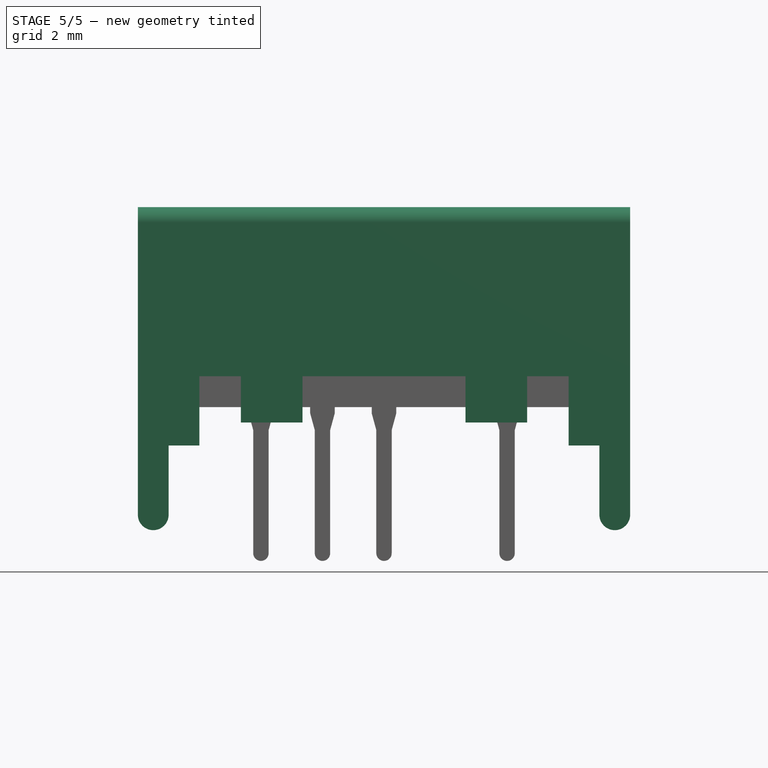
[diagram: stage 5 of 5 — front view after this stage's code; geometry added in this stage tinted green]
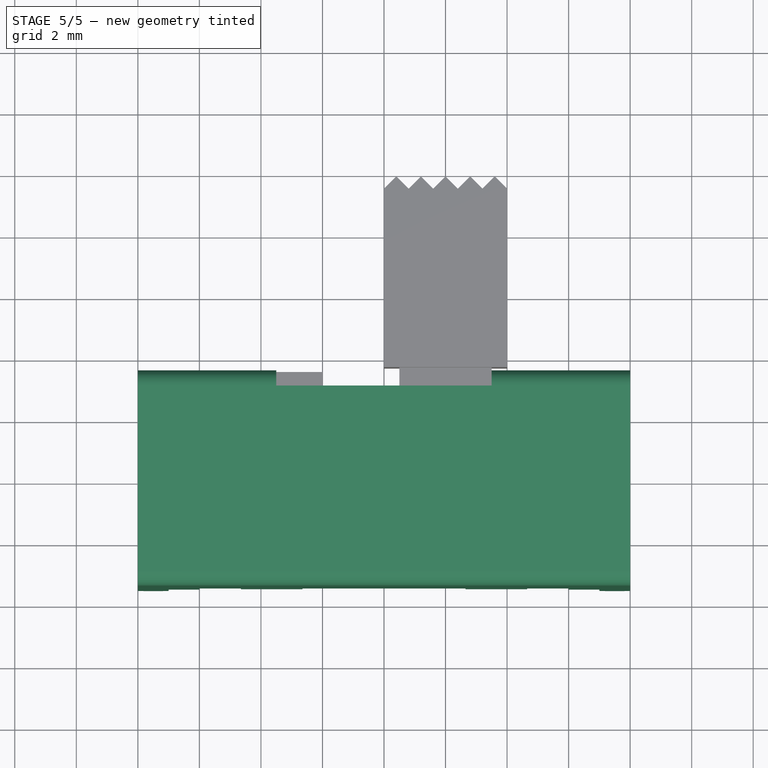
[diagram: stage 5 of 5 — top view after this stage's code; geometry added in this stage tinted green]
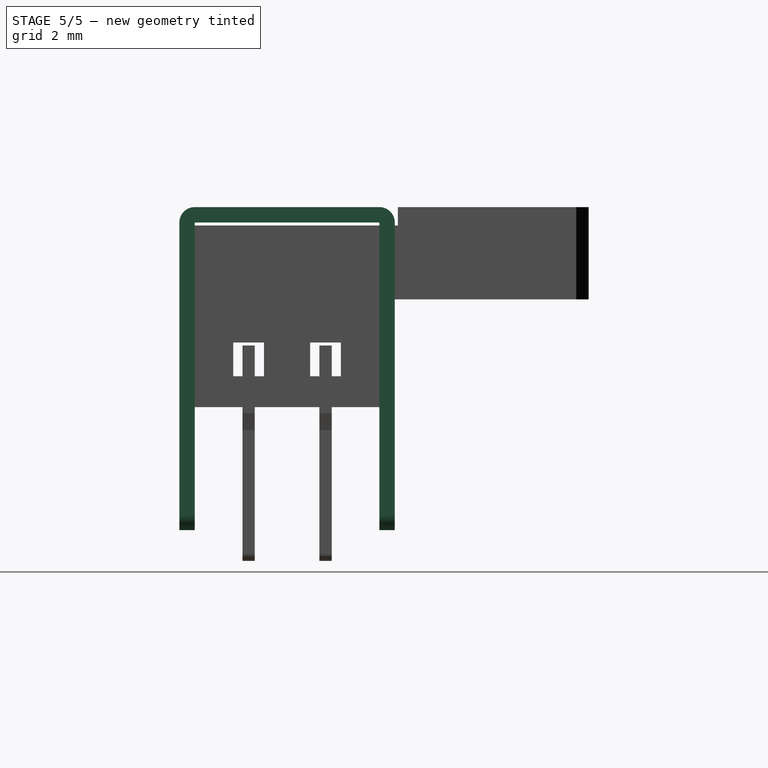
[diagram: stage 5 of 5 — right view after this stage's code; geometry added in this stage tinted green]
FEATURE [Sketcher::SketchObject] Sketch
  FullyConstrained = true
  Placement = pos=(0,0,0) rot=(1,0,0;1.5708rad)
  sketch-geometry (20):
    g0: ArcOfCircle CenterX=0.5 CenterY=0.5 CenterZ=0 NormalX=0 NormalY=0 NormalZ=1 AngleXU=0 Radius=0.5 StartAngle=3.14159 EndAngle=6.28319
    g1: LineSegment StartX=0 StartY=0.5 StartZ=0 EndX=0 EndY=10.5 EndZ=0
    g2: LineSegment StartX=0 StartY=10.5 StartZ=0 EndX=16 EndY=10.5 EndZ=0
    g3: LineSegment StartX=16 StartY=10.5 StartZ=0 EndX=16 EndY=0.5 EndZ=0
    g4: ArcOfCircle CenterX=15.5 CenterY=0.5 CenterZ=0 NormalX=0 NormalY=0 NormalZ=1 AngleXU=0 Radius=0.5 StartAngle=3.14159 EndAngle=6.28319
    g5: LineSegment StartX=1 StartY=0.5 StartZ=0 EndX=1 EndY=2.75 EndZ=0
    g6: LineSegment StartX=15 StartY=2.75 StartZ=0 EndX=15 EndY=0.5 EndZ=0
    g7: LineSegment StartX=14 StartY=2.75 StartZ=0 EndX=15 EndY=2.75 EndZ=0
    g8: LineSegment StartX=2 StartY=2.75 StartZ=0 EndX=1 EndY=2.75 EndZ=0
    g9: LineSegment StartX=2 StartY=2.75 StartZ=0 EndX=2 EndY=5 EndZ=0
    g10: LineSegment StartX=14 StartY=5 StartZ=0 EndX=14 EndY=2.75 EndZ=0
    g11: LineSegment StartX=2 StartY=5 StartZ=0 EndX=3.35 EndY=5 EndZ=0
    g12: LineSegment StartX=12.65 StartY=5 StartZ=0 EndX=14 EndY=5 EndZ=0
    g13: LineSegment StartX=3.35 StartY=3.5 StartZ=0 EndX=5.35 EndY=3.5 EndZ=0
    g14: LineSegment StartX=3.35 StartY=5 StartZ=0 EndX=3.35 EndY=3.5 EndZ=0
    g15: LineSegment StartX=12.65 StartY=5 StartZ=0 EndX=12.65 EndY=3.5 EndZ=0
    g16: LineSegment StartX=10.65 StartY=3.5 StartZ=0 EndX=12.65 EndY=3.5 EndZ=0
    g17: LineSegment StartX=10.65 StartY=3.5 StartZ=0 EndX=10.65 EndY=5 EndZ=0
    g18: LineSegment StartX=5.35 StartY=3.5 StartZ=0 EndX=5.35 EndY=5 EndZ=0
    g19: LineSegment StartX=5.35 StartY=5 StartZ=0 EndX=10.65 EndY=5 EndZ=0
  constraints (62):
    c: Horizontal(g0,g0)
    c: Horizontal(g0,g0)
    c: Radius(g0) = 0.5
    c: DistanceX(g-1,g0) = 0
    c: DistanceY(g-1,g0) = 0.5
    c: Vertical(g1,g1)
    c: Coincident(g1,g0)
    c: Distance(g1) = 10
    c: Horizontal(g2)
    c: Coincident(g2,g1)
    c: Distance(g2) = 16
    c: Vertical(g3)
    c: Coincident(g3,g2)
    c: Distance(g3) = 10
    c: Horizontal(g4,g4)
    c: Horizontal(g4,g4)
    c: Radius(g4) = 0.5
    c: Coincident(g3,g4)
    c: Vertical(g5)
    c: Distance(g5,g5) = 2.25
    c: Coincident(g0,g5)
    c: Distance(g6) = 2.25
    c: Vertical(g6)
    c: Coincident(g6,g4)
    c: Distance(g7) = 1
    c: Horizontal(g7)
    c: Coincident(g7,g6)
    c: Horizontal(g8)
    c: Distance(g8) = 1
    c: Coincident(g8,g5)
    c: Vertical(g9)
    c: Equal(g9,g5)
    c: Coincident(g8,g9)
    c: Vertical(g10)
    c: Equal(g10,g5)
    c: Coincident(g10,g7)
    c: Horizontal(g11)
    c: Distance(g11) = 1.35
    c: Coincident(g11,g9)
    c: Horizontal(g12)
    c: Equal(g12,g11)
    c: Coincident(g12,g10)
    c: Distance(g13) = 2
    c: Vertical(g14)
    c: Horizontal(g13)
    c: Coincident(g14,g13)
    c: Coincident(g14,g11)
    c: DistanceY(g14,g14) = 1.5
    c: Vertical(g15)
    c: DistanceY(g15,g15) = 1.5
    c: Coincident(g15,g12)
    c: Horizontal(g16)
    c: Distance(g16) = 2
    c: Coincident(g16,g15)
    c: Vertical(g18)
    c: Vertical(g17)
    c: Equal(g18,g14)
    c: Coincident(g18,g13)
    c: Equal(g17,g15)
    c: Coincident(g17,g16)
    c: Coincident(g19,g17)
    c: Coincident(g19,g18)
FEATURE [Part::Extrusion] Extrude
  Base = -> Sketch
  Dir = (0,-1,1.1e-15)
  DirMode = 2
  FaceMakerClass = Part::FaceMakerBullseye
  LengthFwd = 7
  LengthRev = 0
  Placement = pos=(-8,3.5,0) rot=(0,0,1;0rad)
  Solid = true
  Symmetric = false
FEATURE [Part::Box] Box  label="Cube"
  AttacherType = Attacher::AttachEngine3D
  Height = 10
  Length = 20
  Placement = pos=(-10,-3,0) rot=(0,0,1;0rad)
  Width = 6
FEATURE [Part::Cut] Cut
  Base = -> Extrude
  Tool = -> Box
FEATURE [Part::Fillet] Fillet
  Base = -> Cut
  Edges = 2 edges r=0.5: [Edge10,Edge56]
FEATURE [Part::Cut] Cut001  label="SteelBody"
  Base = -> Fillet
  Tool = -> Fusion
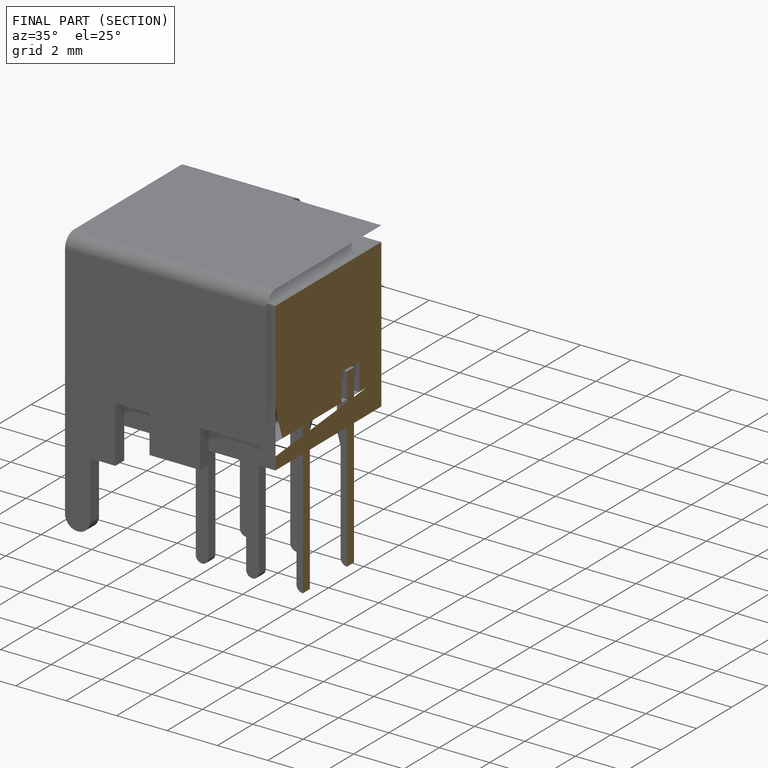
[diagram: finished part — half-section view (interior)]
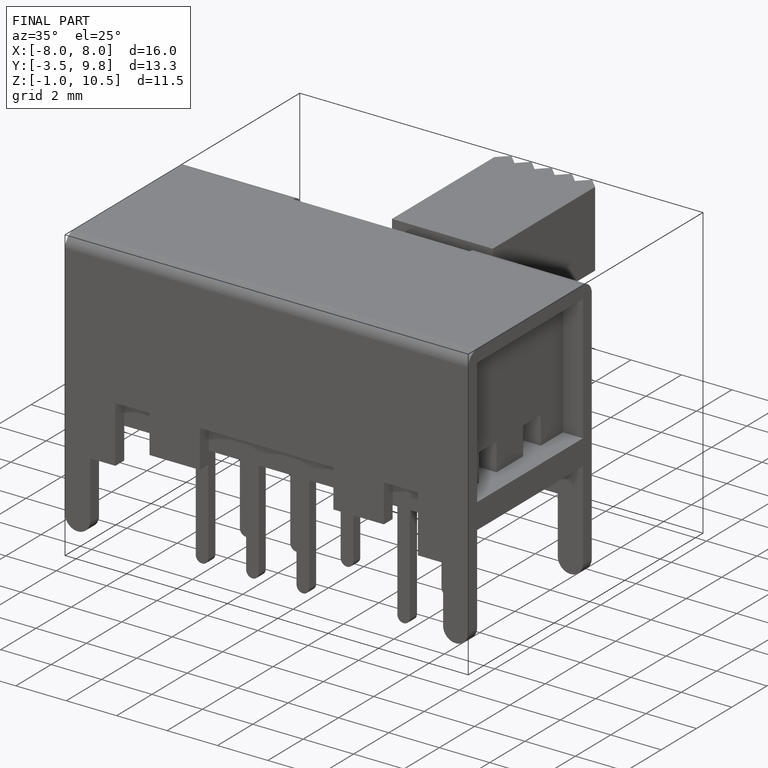
[diagram: finished part — iso view with bounding-box wireframe]
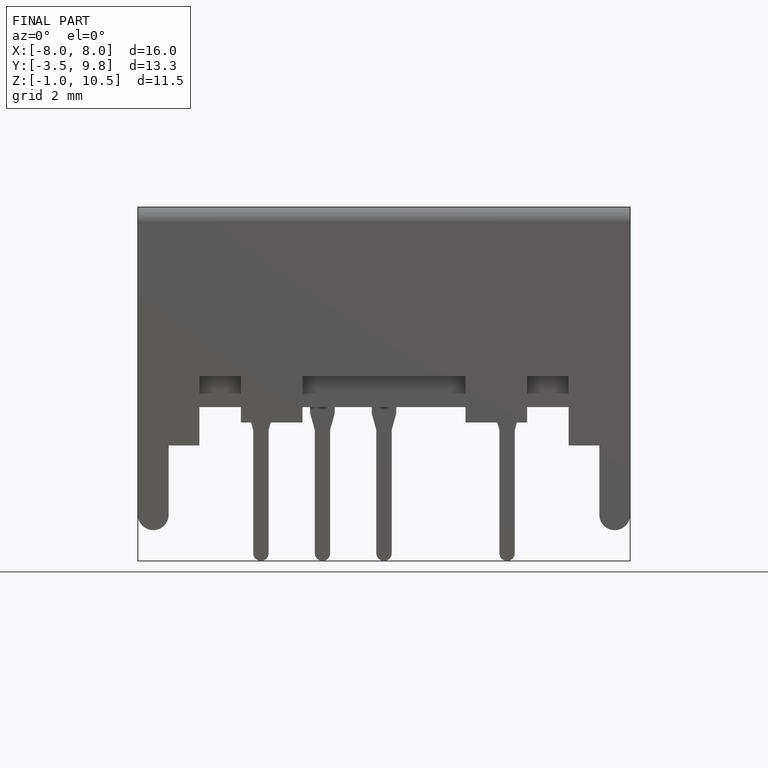
[diagram: finished part — front view with bounding-box wireframe]
